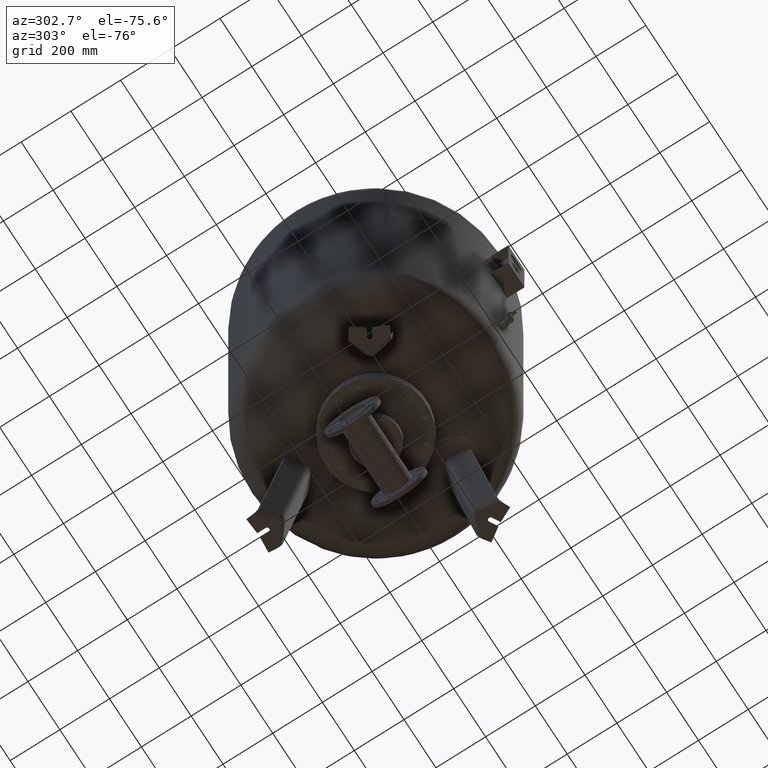
[diagram: clean part render]
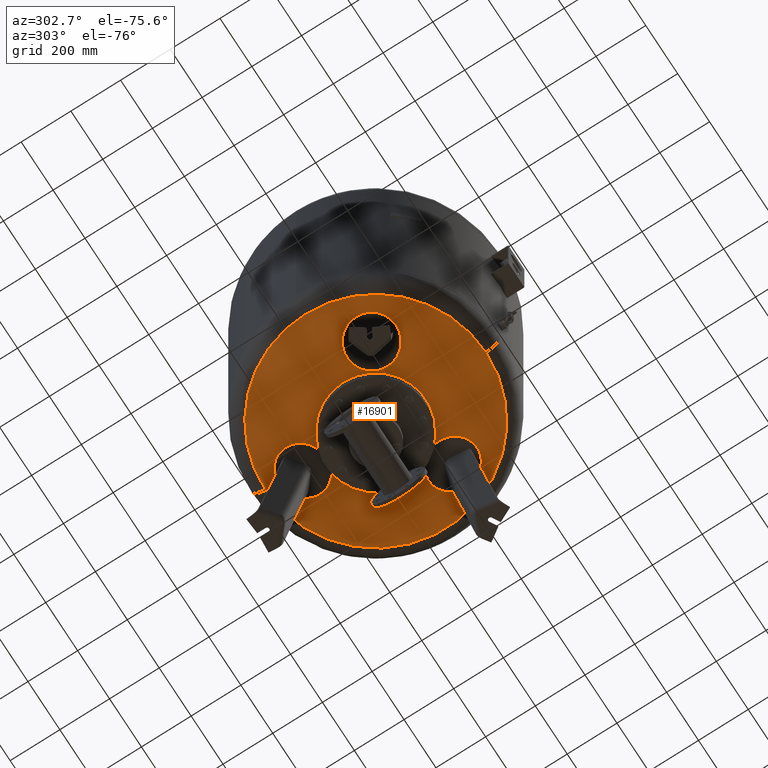
[diagram: same view with one face highlighted and labeled with its STEP entity id]
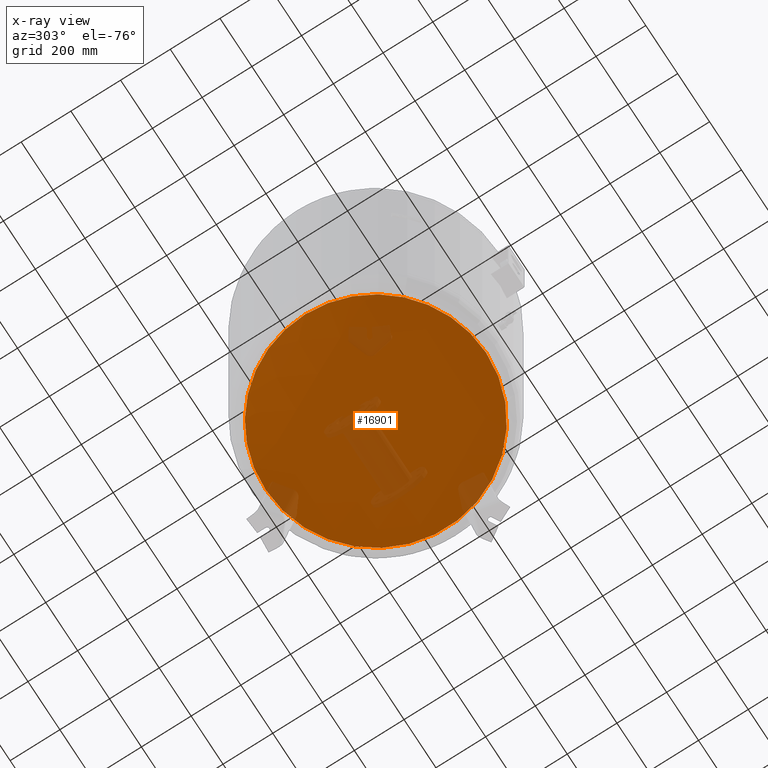
[diagram: x-ray of the same camera — body ghosted, the highlighted face saturated]
A machine part, auxiliary view. The second image highlights one B-rep face of the part: STEP entity #16901.
The next image is the same camera in x-ray: the body ghosted, the highlighted face saturated — about 12% of this face is hidden behind the body in this view.
In plain terms, the highlighted spherical surface has radius 1006 mm.
Its self-contained STEP definition (entity closure, byte-faithful):
#16840=CARTESIAN_POINT('',(1.211146E-014,-443.777777777777600,562.172616747466120));
#16841=VERTEX_POINT('',#16840);
#16857=CARTESIAN_POINT('',(-4.223385E-014,443.777777777777600,562.172616747466350));
#16858=VERTEX_POINT('',#16857);
#16866=CARTESIAN_POINT('',(-443.777777777777600,-1.895250E-014,562.172616747466240));
#16867=VERTEX_POINT('',#16866);
#16868=CARTESIAN_POINT('',(-1.384064E-014,-1.895250E-014,562.172616747466240));
#16869=DIRECTION('',(0.0,0.0,1.0));
#16870=DIRECTION('',(-1.0,0.0,0.0));
#16871=AXIS2_PLACEMENT_3D('',#16868,#16869,#16870);
#16872=CIRCLE('',#16871,443.777777777777600);
#16873=EDGE_CURVE('',#16858,#16867,#16872,.T.);
#16875=CARTESIAN_POINT('',(-1.384064E-014,-1.895250E-014,562.172616747466240));
#16876=DIRECTION('',(0.0,0.0,1.0));
#16877=DIRECTION('',(-1.0,0.0,0.0));
#16878=AXIS2_PLACEMENT_3D('',#16875,#16876,#16877);
#16879=CIRCLE('',#16878,443.777777777777600);
#16880=EDGE_CURVE('',#16867,#16841,#16879,.T.);
#16885=CARTESIAN_POINT('',(-2.223045E-013,-1.847992E-013,1465.0));
#16886=DIRECTION('',(0.0,-1.0,0.0));
#16887=DIRECTION('',(1.0,0.0,0.0));
#16888=AXIS2_PLACEMENT_3D('',#16885,#16886,#16887);
#16889=SPHERICAL_SURFACE('',#16888,1006.000000000000100);
#16890=ORIENTED_EDGE('',*,*,#16880,.F.);
#16891=ORIENTED_EDGE('',*,*,#16873,.F.);
#16892=CARTESIAN_POINT('',(-1.384064E-014,-1.895250E-014,562.172616747466240));
#16893=DIRECTION('',(0.0,0.0,1.0));
#16894=DIRECTION('',(-1.0,0.0,0.0));
#16895=AXIS2_PLACEMENT_3D('',#16892,#16893,#16894);
#16896=CIRCLE('',#16895,443.777777777777600);
#16897=EDGE_CURVE('',#16841,#16858,#16896,.T.);
#16898=ORIENTED_EDGE('',*,*,#16897,.F.);
#16899=EDGE_LOOP('',(#16890,#16891,#16898));
#16900=FACE_OUTER_BOUND('',#16899,.T.);
#16901=ADVANCED_FACE('',(#16900),#16889,.T.);